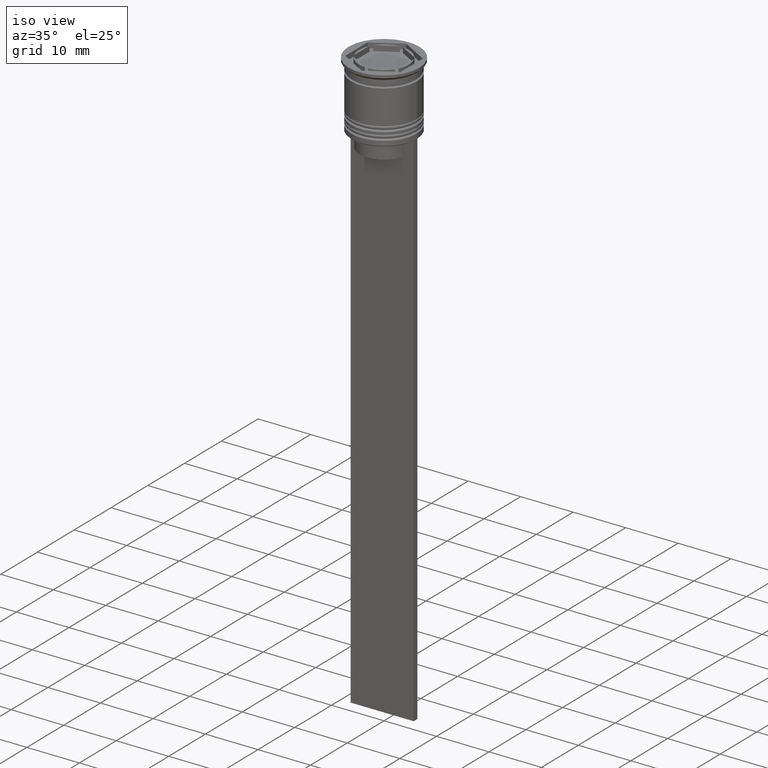
[diagram: clean part render]
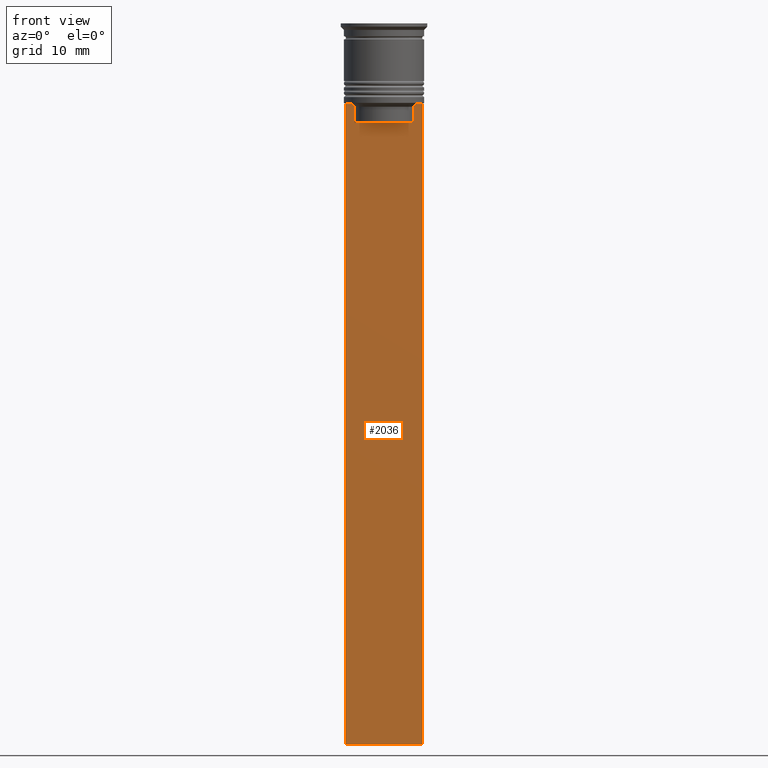
[diagram: tour spotlight — one face highlighted and labeled with its STEP entity id]
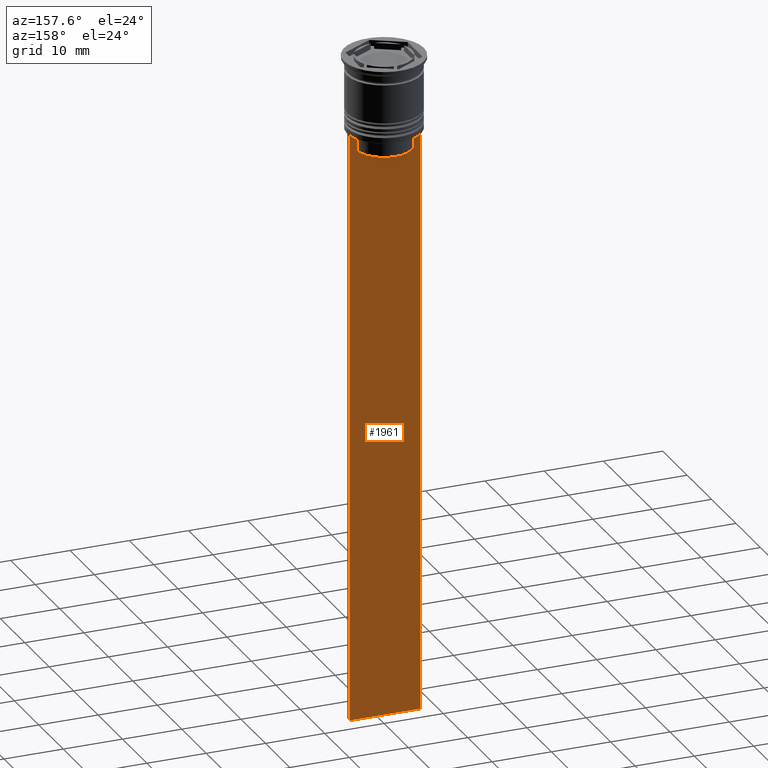
[diagram: tour spotlight — one face highlighted and labeled with its STEP entity id]
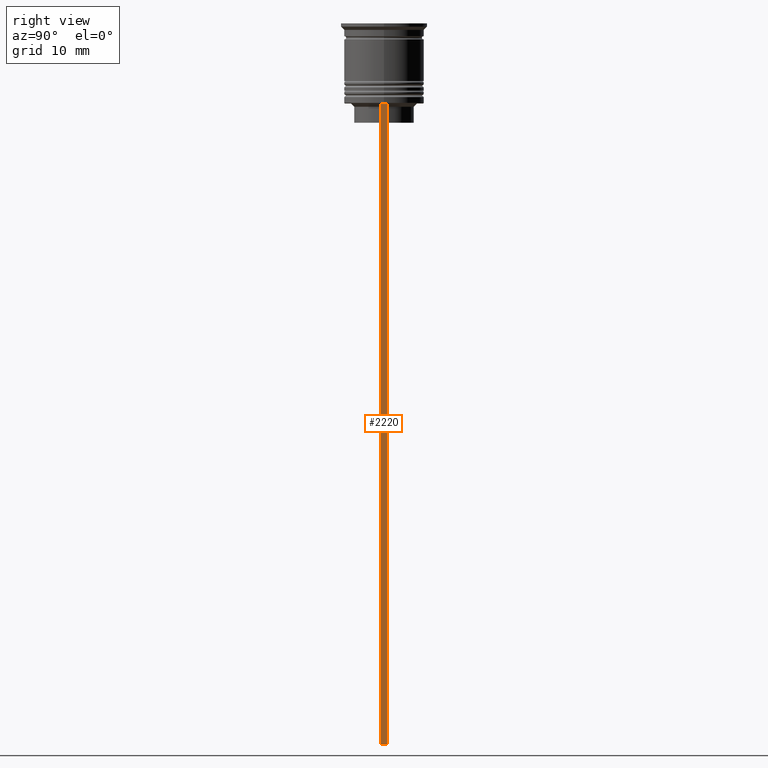
[diagram: tour spotlight — one face highlighted and labeled with its STEP entity id]
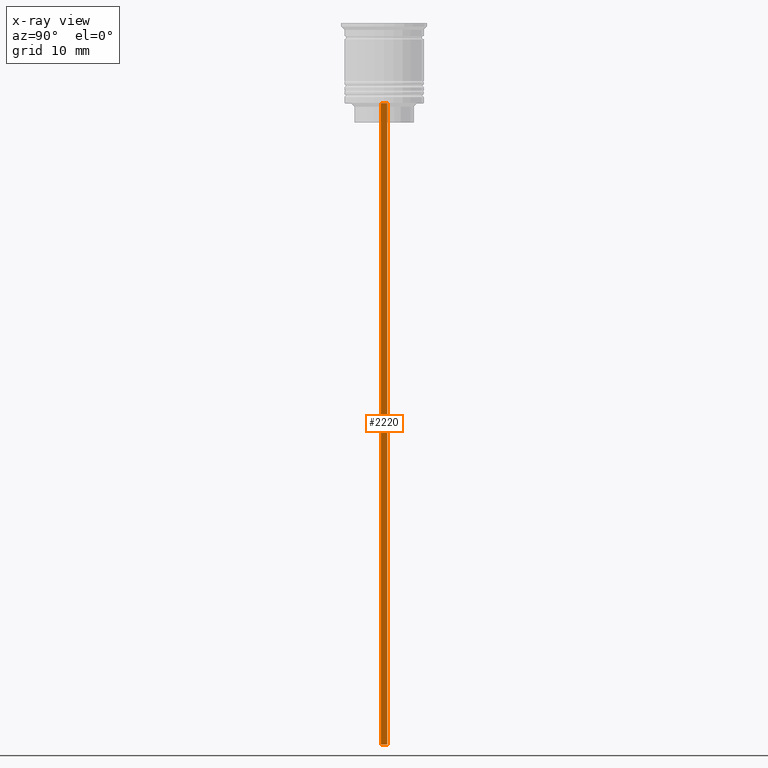
[diagram: x-ray of the same camera — body ghosted, this tour face saturated]
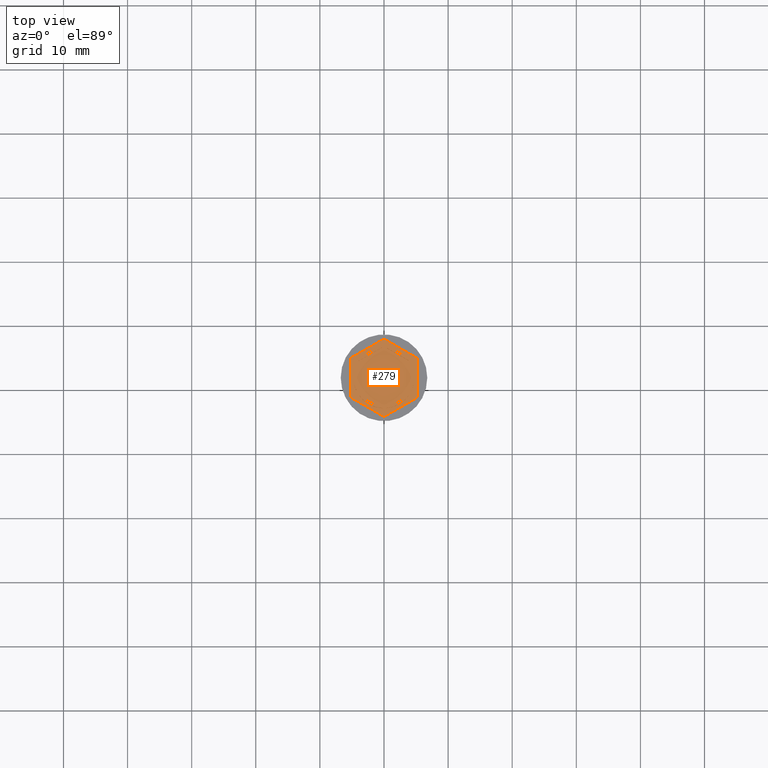
[diagram: tour spotlight — one face highlighted and labeled with its STEP entity id]
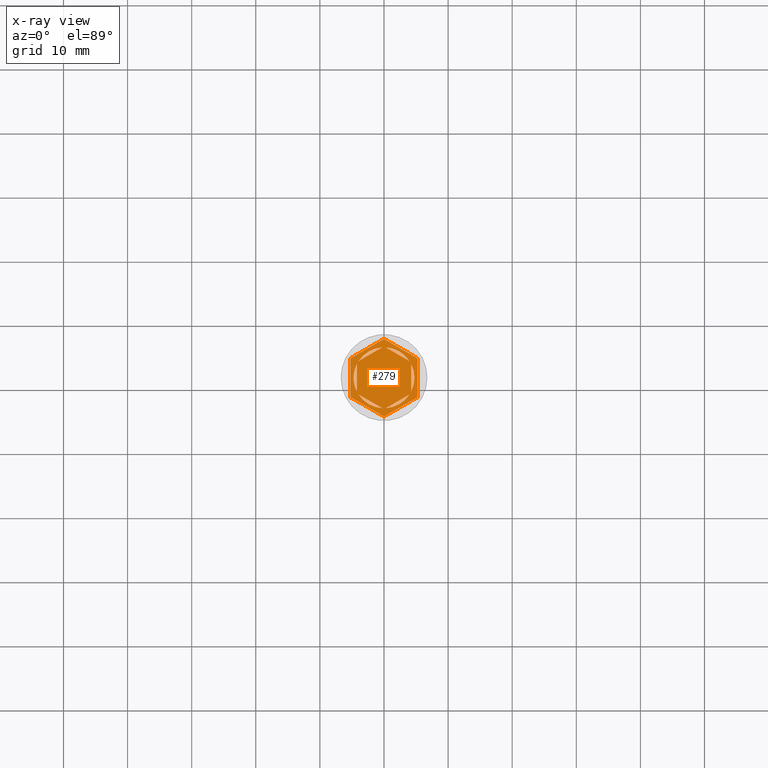
[diagram: x-ray of the same camera — body ghosted, this tour face saturated]
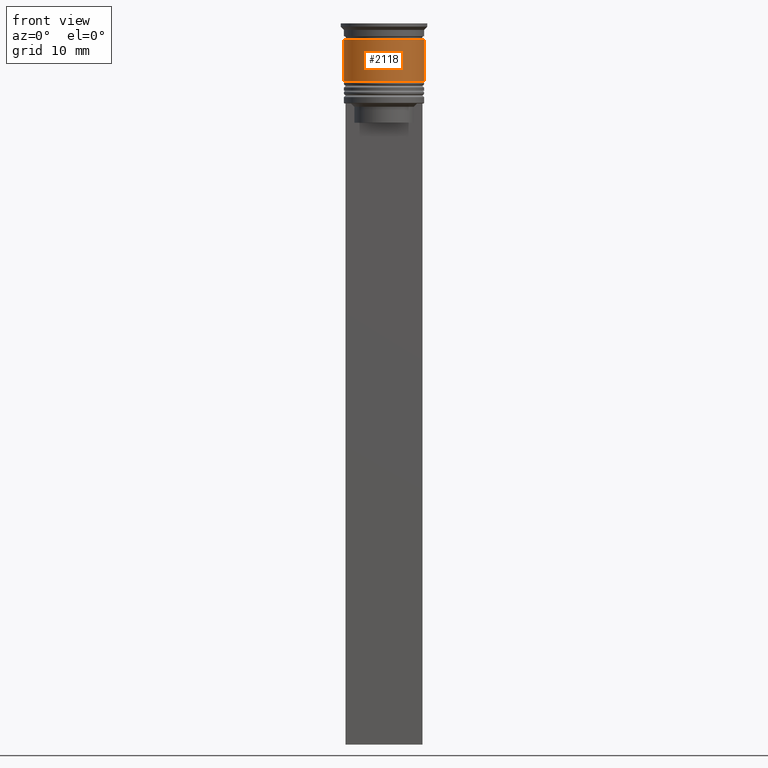
[diagram: tour spotlight — one face highlighted and labeled with its STEP entity id]
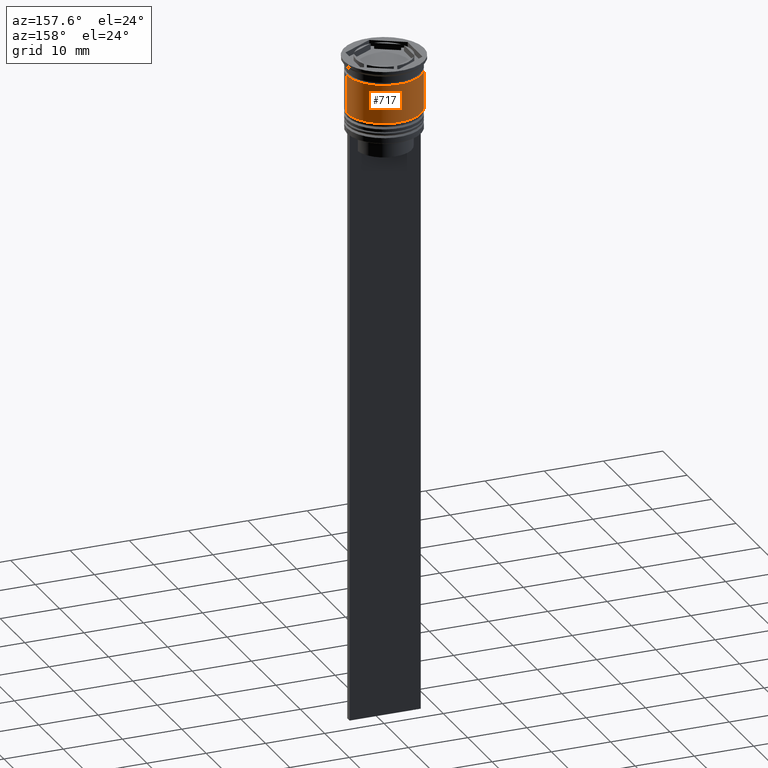
[diagram: tour spotlight — one face highlighted and labeled with its STEP entity id]
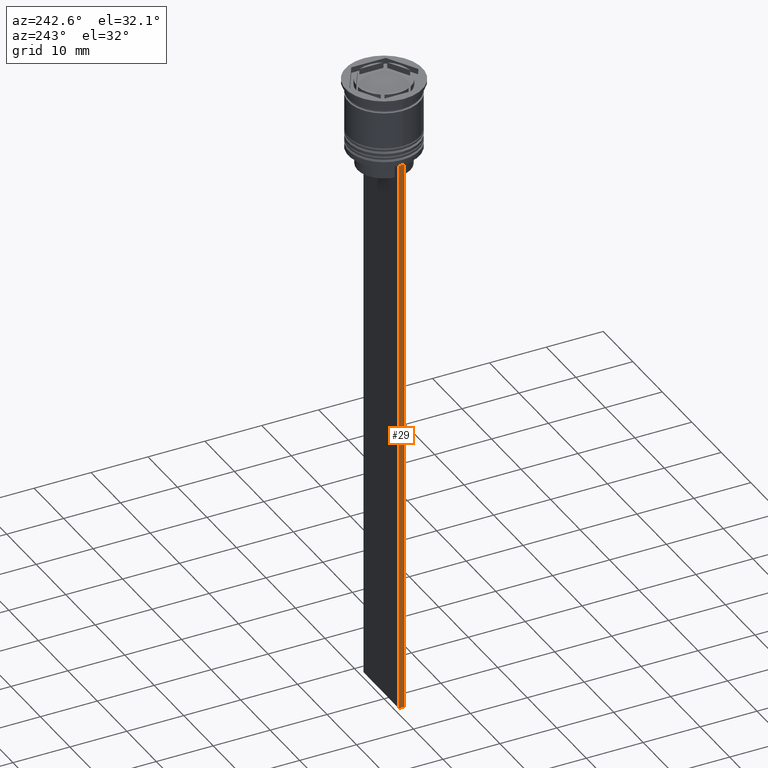
[diagram: tour spotlight — one face highlighted and labeled with its STEP entity id]
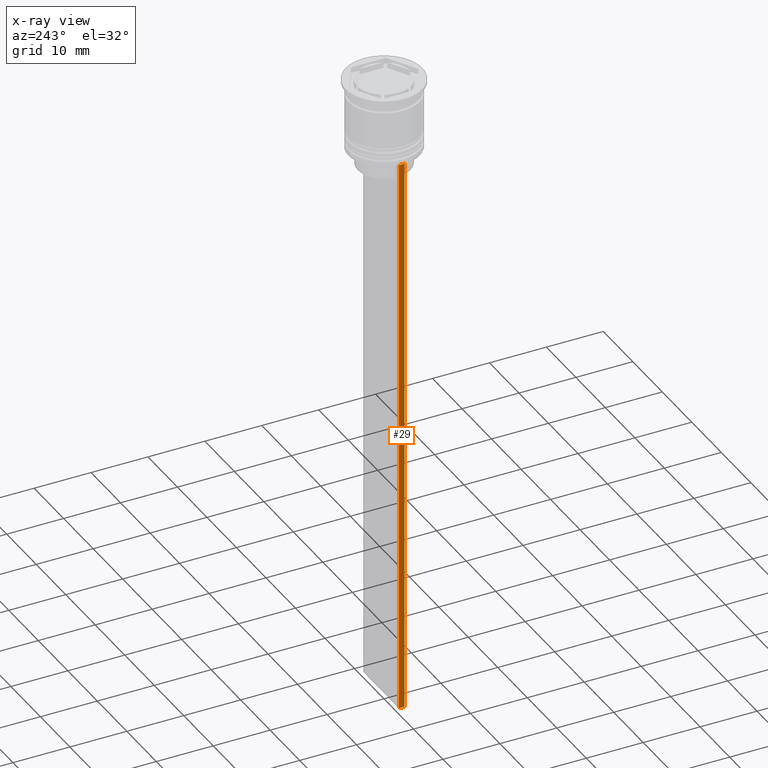
[diagram: x-ray of the same camera — body ghosted, this tour face saturated]
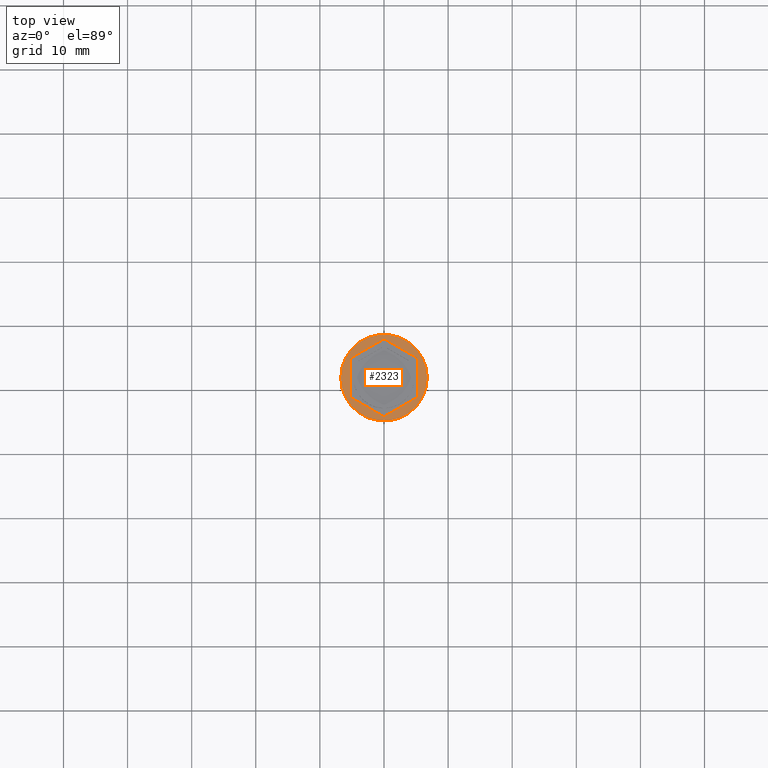
[diagram: tour spotlight — one face highlighted and labeled with its STEP entity id]
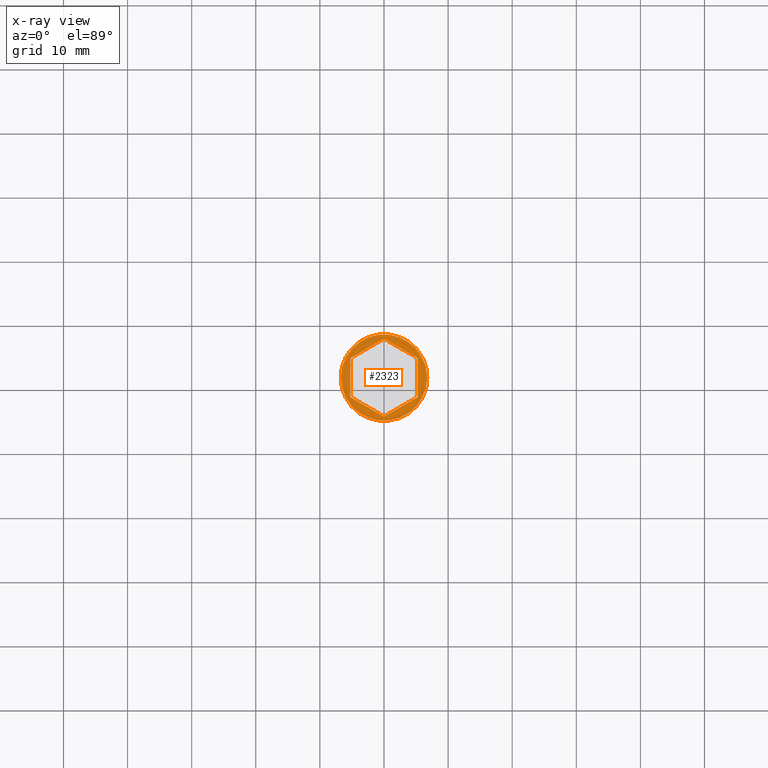
[diagram: x-ray of the same camera — body ghosted, this tour face saturated]
A machine part: a face-by-face anatomy tour. The part has 85 B-rep faces; the first image is the clean iso view, then the 8 largest visible faces are spotlighted one at a time (largest first), each with its STEP entity span.

Face 1 — front view, entity #2036. In plain terms, the highlighted planar face has unit normal (0, -1, -0).
Definition (entity closure, byte-faithful):
#16 = VERTEX_POINT ( 'NONE', #1810 ) ;
#57 = CARTESIAN_POINT ( 'NONE',  ( 4.623040125285526436, -0.5000000000000017764, -13.00000000000000178 ) ) ;
#94 = VECTOR ( 'NONE', #1087, 1000.000000000000000 ) ;
#104 = CARTESIAN_POINT ( 'NONE',  ( 6.000000000000016875, -0.5000000000000017764, -112.5000000000000000 ) ) ;
#114 = VECTOR ( 'NONE', #1331, 1000.000000000000000 ) ;
#170 = AXIS2_PLACEMENT_3D ( 'NONE', #1927, #1547, #2094 ) ;
#172 = LINE ( 'NONE', #1618, #2310 ) ;
#211 = EDGE_CURVE ( 'NONE', #16, #2301, #658, .T. ) ;
#240 = DIRECTION ( 'NONE',  ( 1.000000000000000000, 0.000000000000000000, 0.000000000000000000 ) ) ;
#291 = PLANE ( 'NONE',  #170 ) ;
#295 = EDGE_CURVE ( 'NONE', #1500, #544, #2290, .T. ) ;
#298 = B_SPLINE_CURVE_WITH_KNOTS ( 'NONE', 3,
 ( #1911, #793, #1497, #606 ),
 .UNSPECIFIED., .F., .F.,
 ( 4, 4 ),
 ( 0.02203698174624552780, 0.02275222543365896383 ),
 .UNSPECIFIED. ) ;
#348 = VECTOR ( 'NONE', #240, 1000.000000000000000 ) ;
#390 = VECTOR ( 'NONE', #1135, 1000.000000000000000 ) ;
#415 = CARTESIAN_POINT ( 'NONE',  ( 4.623040125285526436, -0.5000000000000022204, -15.50000000000000000 ) ) ;
#486 = CARTESIAN_POINT ( 'NONE',  ( -5.125670687822231564, -0.5000000000000017764, -12.50000000000000000 ) ) ;
#509 = CARTESIAN_POINT ( 'NONE',  ( -4.958169823806760412, -0.5000000000000017764, -12.66670956677067927 ) ) ;
#544 = VERTEX_POINT ( 'NONE', #57 ) ;
#546 = EDGE_CURVE ( 'NONE', #544, #16, #298, .T. ) ;
#547 = CARTESIAN_POINT ( 'NONE',  ( -4.623040125285526436, -0.5000000000000017764, 0.000000000000000000 ) ) ;
#600 = EDGE_CURVE ( 'NONE', #1481, #673, #1886, .T. ) ;
#604 = ORIENTED_EDGE ( 'NONE', *, *, #2221, .T. ) ;
#606 = CARTESIAN_POINT ( 'NONE',  ( 5.125670687822231564, -0.5000000000000017764, -12.50000000000000000 ) ) ;
#636 = B_SPLINE_CURVE_WITH_KNOTS ( 'NONE', 3,
 ( #486, #509, #2140, #1573 ),
 .UNSPECIFIED., .F., .F.,
 ( 4, 4 ),
 ( 0.008759809102772709091, 0.009468778395565353653 ),
 .UNSPECIFIED. ) ;
#658 = LINE ( 'NONE', #1137, #348 ) ;
#673 = VERTEX_POINT ( 'NONE', #1210 ) ;
#684 = VERTEX_POINT ( 'NONE', #1024 ) ;
#720 = ORIENTED_EDGE ( 'NONE', *, *, #295, .F. ) ;
#724 = DIRECTION ( 'NONE',  ( 1.000000000000000000, 0.000000000000000000, 0.000000000000000000 ) ) ;
#770 = CARTESIAN_POINT ( 'NONE',  ( 6.000000000000016875, -0.5000000000000017764, -112.5000000000000000 ) ) ;
#786 = EDGE_CURVE ( 'NONE', #1676, #1383, #1256, .T. ) ;
#792 = EDGE_LOOP ( 'NONE', ( #1630, #1095, #604, #802, #1465, #1238, #1574, #720, #1426, #1038 ) ) ;
#793 = CARTESIAN_POINT ( 'NONE',  ( 4.790630799407577634, -0.5000000000000017764, -12.83338098686238915 ) ) ;
#802 = ORIENTED_EDGE ( 'NONE', *, *, #600, .F. ) ;
#810 = LINE ( 'NONE', #1690, #114 ) ;
#846 = VECTOR ( 'NONE', #724, 1000.000000000000000 ) ;
#974 = CARTESIAN_POINT ( 'NONE',  ( 6.000000000000016875, -0.5000000000000017764, -12.50000000000000000 ) ) ;
#1024 = CARTESIAN_POINT ( 'NONE',  ( -4.623040125285526436, -0.5000000000000017764, -13.00000000000000178 ) ) ;
#1029 = CARTESIAN_POINT ( 'NONE',  ( 4.623040125285526436, -0.5000000000000017764, 0.000000000000000000 ) ) ;
#1038 = ORIENTED_EDGE ( 'NONE', *, *, #1776, .F. ) ;
#1087 = DIRECTION ( 'NONE',  ( 0.000000000000000000, 0.000000000000000000, -1.000000000000000000 ) ) ;
#1095 = ORIENTED_EDGE ( 'NONE', *, *, #786, .F. ) ;
#1135 = DIRECTION ( 'NONE',  ( -1.000000000000000000, 0.000000000000000000, 0.000000000000000000 ) ) ;
#1137 = CARTESIAN_POINT ( 'NONE',  ( 6.000000000000016875, -0.5000000000000017764, -12.50000000000000000 ) ) ;
#1182 = VECTOR ( 'NONE', #2136, 1000.000000000000000 ) ;
#1210 = CARTESIAN_POINT ( 'NONE',  ( -5.999999999999983125, -0.5000000000000017764, -112.5000000000000000 ) ) ;
#1238 = ORIENTED_EDGE ( 'NONE', *, *, #211, .F. ) ;
#1256 = LINE ( 'NONE', #2189, #846 ) ;
#1331 = DIRECTION ( 'NONE',  ( 0.000000000000000000, 0.000000000000000000, -1.000000000000000000 ) ) ;
#1338 = CARTESIAN_POINT ( 'NONE',  ( -5.125670687822231564, -0.5000000000000017764, -12.50000000000000000 ) ) ;
#1383 = VERTEX_POINT ( 'NONE', #1338 ) ;
#1401 = LINE ( 'NONE', #2315, #2031 ) ;
#1415 = DIRECTION ( 'NONE',  ( 0.000000000000000000, 0.000000000000000000, -1.000000000000000000 ) ) ;
#1426 = ORIENTED_EDGE ( 'NONE', *, *, #2162, .F. ) ;
#1465 = ORIENTED_EDGE ( 'NONE', *, *, #1995, .F. ) ;
#1468 = CARTESIAN_POINT ( 'NONE',  ( -5.999999999999983125, -0.5000000000000017764, -12.50000000000000000 ) ) ;
#1481 = VERTEX_POINT ( 'NONE', #104 ) ;
#1491 = VERTEX_POINT ( 'NONE', #1515 ) ;
#1497 = CARTESIAN_POINT ( 'NONE',  ( 4.958169719475987947, -0.5000000000000017764, -12.66670967060858111 ) ) ;
#1500 = VERTEX_POINT ( 'NONE', #415 ) ;
#1515 = CARTESIAN_POINT ( 'NONE',  ( -4.623040125285526436, -0.5000000000000022204, -15.50000000000000000 ) ) ;
#1547 = DIRECTION ( 'NONE',  ( 0.000000000000000000, -1.000000000000000000, -0.000000000000000000 ) ) ;
#1573 = CARTESIAN_POINT ( 'NONE',  ( -4.623040125285526436, -0.5000000000000017764, -13.00000000000000178 ) ) ;
#1574 = ORIENTED_EDGE ( 'NONE', *, *, #546, .F. ) ;
#1618 = CARTESIAN_POINT ( 'NONE',  ( 0.000000000000000000, -0.5000000000000022204, -15.50000000000000000 ) ) ;
#1630 = ORIENTED_EDGE ( 'NONE', *, *, #2010, .F. ) ;
#1676 = VERTEX_POINT ( 'NONE', #1468 ) ;
#1690 = CARTESIAN_POINT ( 'NONE',  ( -5.999999999999983125, -0.5000000000000017764, -0.4584054212077061097 ) ) ;
#1776 = EDGE_CURVE ( 'NONE', #684, #1491, #1839, .T. ) ;
#1810 = CARTESIAN_POINT ( 'NONE',  ( 5.125670687822231564, -0.5000000000000017764, -12.50000000000000000 ) ) ;
#1839 = LINE ( 'NONE', #547, #94 ) ;
#1886 = LINE ( 'NONE', #770, #390 ) ;
#1911 = CARTESIAN_POINT ( 'NONE',  ( 4.623040125285526436, -0.5000000000000017764, -13.00000000000000178 ) ) ;
#1927 = CARTESIAN_POINT ( 'NONE',  ( 6.000000000000016875, -0.5000000000000017764, -0.4584054212077061097 ) ) ;
#1990 = DIRECTION ( 'NONE',  ( 1.000000000000000000, 0.000000000000000000, 0.000000000000000000 ) ) ;
#1995 = EDGE_CURVE ( 'NONE', #2301, #1481, #1401, .T. ) ;
#2010 = EDGE_CURVE ( 'NONE', #1383, #684, #636, .T. ) ;
#2031 = VECTOR ( 'NONE', #1415, 1000.000000000000000 ) ;
#2036 = ADVANCED_FACE ( 'NONE', ( #2302 ), #291, .T. ) ;
#2094 = DIRECTION ( 'NONE',  ( 0.000000000000000000, 0.000000000000000000, -1.000000000000000000 ) ) ;
#2136 = DIRECTION ( 'NONE',  ( -0.000000000000000000, -0.000000000000000000, 1.000000000000000000 ) ) ;
#2140 = CARTESIAN_POINT ( 'NONE',  ( -4.790630915080664742, -0.5000000000000017764, -12.83338087185995491 ) ) ;
#2162 = EDGE_CURVE ( 'NONE', #1491, #1500, #172, .T. ) ;
#2189 = CARTESIAN_POINT ( 'NONE',  ( 6.000000000000016875, -0.5000000000000017764, -12.50000000000000000 ) ) ;
#2221 = EDGE_CURVE ( 'NONE', #1676, #673, #810, .T. ) ;
#2290 = LINE ( 'NONE', #1029, #1182 ) ;
#2301 = VERTEX_POINT ( 'NONE', #974 ) ;
#2302 = FACE_OUTER_BOUND ( 'NONE', #792, .T. ) ;
#2310 = VECTOR ( 'NONE', #1990, 1000.000000000000000 ) ;
#2315 = CARTESIAN_POINT ( 'NONE',  ( 6.000000000000016875, -0.5000000000000017764, -0.4584054212077061097 ) ) ;

Face 2 — auxiliary view, entity #1961. In plain terms, the highlighted planar face has unit normal (0, -1, -0).
Definition (entity closure, byte-faithful):
#3 = LINE ( 'NONE', #542, #343 ) ;
#68 = DIRECTION ( 'NONE',  ( -0.000000000000000000, -0.000000000000000000, 1.000000000000000000 ) ) ;
#75 = EDGE_CURVE ( 'NONE', #186, #1871, #1296, .T. ) ;
#77 = ORIENTED_EDGE ( 'NONE', *, *, #2119, .T. ) ;
#102 = CARTESIAN_POINT ( 'NONE',  ( -4.958169823806762189, 0.4999999999999982792, -12.66670956677067750 ) ) ;
#108 = CARTESIAN_POINT ( 'NONE',  ( -4.623040125285526436, 0.4999999999999987232, -15.50000000000000000 ) ) ;
#124 = VECTOR ( 'NONE', #68, 1000.000000000000000 ) ;
#126 = VECTOR ( 'NONE', #1511, 1000.000000000000000 ) ;
#147 = FACE_OUTER_BOUND ( 'NONE', #778, .T. ) ;
#166 = VECTOR ( 'NONE', #1005, 1000.000000000000000 ) ;
#186 = VERTEX_POINT ( 'NONE', #108 ) ;
#262 = DIRECTION ( 'NONE',  ( 0.000000000000000000, 0.000000000000000000, -1.000000000000000000 ) ) ;
#280 = CARTESIAN_POINT ( 'NONE',  ( 6.000000000000016875, 0.4999999999999982792, -0.4584054212077061097 ) ) ;
#336 = CARTESIAN_POINT ( 'NONE',  ( 6.000000000000016875, 0.4999999999999982792, -12.50000000000000000 ) ) ;
#343 = VECTOR ( 'NONE', #1784, 1000.000000000000000 ) ;
#389 = ORIENTED_EDGE ( 'NONE', *, *, #1004, .T. ) ;
#393 = VECTOR ( 'NONE', #262, 1000.000000000000000 ) ;
#416 = LINE ( 'NONE', #1329, #1906 ) ;
#450 = CARTESIAN_POINT ( 'NONE',  ( 4.623040125285526436, 0.4999999999999987232, -15.50000000000000000 ) ) ;
#452 = CARTESIAN_POINT ( 'NONE',  ( 6.000000000000016875, 0.4999999999999982792, -0.4584054212077061097 ) ) ;
#481 = LINE ( 'NONE', #755, #393 ) ;
#484 = ORIENTED_EDGE ( 'NONE', *, *, #1947, .T. ) ;
#522 = CARTESIAN_POINT ( 'NONE',  ( -5.125670687822231564, 0.4999999999999982792, -12.50000000000000000 ) ) ;
#542 = CARTESIAN_POINT ( 'NONE',  ( 6.000000000000016875, 0.4999999999999982792, -12.50000000000000000 ) ) ;
#545 = EDGE_CURVE ( 'NONE', #1871, #823, #1698, .T. ) ;
#575 = EDGE_CURVE ( 'NONE', #2125, #1783, #416, .T. ) ;
#639 = ORIENTED_EDGE ( 'NONE', *, *, #861, .T. ) ;
#644 = CARTESIAN_POINT ( 'NONE',  ( 5.125670687822231564, 0.4999999999999982792, -12.50000000000000000 ) ) ;
#663 = CARTESIAN_POINT ( 'NONE',  ( -4.790630915080666519, 0.4999999999999982792, -12.83338087185995313 ) ) ;
#677 = CARTESIAN_POINT ( 'NONE',  ( -4.623040125285526436, 0.4999999999999982792, -13.00000000000000178 ) ) ;
#686 = VECTOR ( 'NONE', #2152, 1000.000000000000000 ) ;
#694 = PLANE ( 'NONE',  #704 ) ;
#704 = AXIS2_PLACEMENT_3D ( 'NONE', #280, #1033, #2106 ) ;
#719 = CARTESIAN_POINT ( 'NONE',  ( 6.000000000000016875, 0.4999999999999982792, -112.5000000000000000 ) ) ;
#755 = CARTESIAN_POINT ( 'NONE',  ( -4.623040125285526436, 0.4999999999999982792, 0.000000000000000000 ) ) ;
#778 = EDGE_LOOP ( 'NONE', ( #1436, #484, #389, #2329, #1280, #639, #77, #989, #2246, #2303 ) ) ;
#788 = LINE ( 'NONE', #1692, #126 ) ;
#823 = VERTEX_POINT ( 'NONE', #2046 ) ;
#834 = CARTESIAN_POINT ( 'NONE',  ( -5.999999999999983125, 0.4999999999999985012, -12.50000000000000000 ) ) ;
#861 = EDGE_CURVE ( 'NONE', #823, #1088, #1656, .T. ) ;
#902 = EDGE_CURVE ( 'NONE', #1965, #1783, #788, .T. ) ;
#989 = ORIENTED_EDGE ( 'NONE', *, *, #1455, .T. ) ;
#1004 = EDGE_CURVE ( 'NONE', #1539, #186, #481, .T. ) ;
#1005 = DIRECTION ( 'NONE',  ( 0.000000000000000000, 0.000000000000000000, -1.000000000000000000 ) ) ;
#1006 = DIRECTION ( 'NONE',  ( -1.000000000000000000, 0.000000000000000000, 0.000000000000000000 ) ) ;
#1033 = DIRECTION ( 'NONE',  ( 0.000000000000000000, -1.000000000000000000, -0.000000000000000000 ) ) ;
#1088 = VERTEX_POINT ( 'NONE', #644 ) ;
#1277 = LINE ( 'NONE', #2161, #686 ) ;
#1280 = ORIENTED_EDGE ( 'NONE', *, *, #545, .T. ) ;
#1296 = LINE ( 'NONE', #1375, #1716 ) ;
#1329 = CARTESIAN_POINT ( 'NONE',  ( 6.000000000000016875, 0.4999999999999982792, -112.5000000000000000 ) ) ;
#1375 = CARTESIAN_POINT ( 'NONE',  ( 0.000000000000000000, 0.4999999999999987232, -15.50000000000000000 ) ) ;
#1431 = CARTESIAN_POINT ( 'NONE',  ( 4.623040125285526436, 0.4999999999999982792, -13.00000000000000178 ) ) ;
#1436 = ORIENTED_EDGE ( 'NONE', *, *, #2134, .T. ) ;
#1455 = EDGE_CURVE ( 'NONE', #2116, #2125, #1909, .T. ) ;
#1458 = CARTESIAN_POINT ( 'NONE',  ( -5.999999999999983125, 0.4999999999999982792, -112.5000000000000000 ) ) ;
#1487 = VERTEX_POINT ( 'NONE', #2216 ) ;
#1511 = DIRECTION ( 'NONE',  ( 0.000000000000000000, 0.000000000000000000, -1.000000000000000000 ) ) ;
#1539 = VERTEX_POINT ( 'NONE', #677 ) ;
#1656 = B_SPLINE_CURVE_WITH_KNOTS ( 'NONE', 3,
 ( #1431, #2342, #1790, #1997 ),
 .UNSPECIFIED., .F., .F.,
 ( 4, 4 ),
 ( 0.02203698174624552433, 0.02275222543365896036 ),
 .UNSPECIFIED. ) ;
#1675 = B_SPLINE_CURVE_WITH_KNOTS ( 'NONE', 3,
 ( #522, #102, #663, #1749 ),
 .UNSPECIFIED., .F., .F.,
 ( 4, 4 ),
 ( 0.008759809102772707357, 0.009468778395565351919 ),
 .UNSPECIFIED. ) ;
#1692 = CARTESIAN_POINT ( 'NONE',  ( -5.999999999999983125, 0.4999999999999982792, -0.4584054212077061097 ) ) ;
#1698 = LINE ( 'NONE', #1897, #124 ) ;
#1716 = VECTOR ( 'NONE', #1863, 1000.000000000000000 ) ;
#1749 = CARTESIAN_POINT ( 'NONE',  ( -4.623040125285526436, 0.4999999999999982792, -13.00000000000000178 ) ) ;
#1783 = VERTEX_POINT ( 'NONE', #1458 ) ;
#1784 = DIRECTION ( 'NONE',  ( 1.000000000000000000, 0.000000000000000000, 0.000000000000000000 ) ) ;
#1790 = CARTESIAN_POINT ( 'NONE',  ( 4.958169719475987058, 0.4999999999999982792, -12.66670967060858111 ) ) ;
#1863 = DIRECTION ( 'NONE',  ( 1.000000000000000000, 0.000000000000000000, 0.000000000000000000 ) ) ;
#1871 = VERTEX_POINT ( 'NONE', #450 ) ;
#1897 = CARTESIAN_POINT ( 'NONE',  ( 4.623040125285526436, 0.4999999999999982792, 0.000000000000000000 ) ) ;
#1906 = VECTOR ( 'NONE', #1006, 1000.000000000000000 ) ;
#1909 = LINE ( 'NONE', #452, #166 ) ;
#1947 = EDGE_CURVE ( 'NONE', #1487, #1539, #1675, .T. ) ;
#1961 = ADVANCED_FACE ( 'NONE', ( #147 ), #694, .F. ) ;
#1965 = VERTEX_POINT ( 'NONE', #834 ) ;
#1997 = CARTESIAN_POINT ( 'NONE',  ( 5.125670687822231564, 0.4999999999999982792, -12.50000000000000000 ) ) ;
#2046 = CARTESIAN_POINT ( 'NONE',  ( 4.623040125285526436, 0.4999999999999982792, -13.00000000000000178 ) ) ;
#2106 = DIRECTION ( 'NONE',  ( 0.000000000000000000, 0.000000000000000000, -1.000000000000000000 ) ) ;
#2116 = VERTEX_POINT ( 'NONE', #336 ) ;
#2119 = EDGE_CURVE ( 'NONE', #1088, #2116, #3, .T. ) ;
#2125 = VERTEX_POINT ( 'NONE', #719 ) ;
#2134 = EDGE_CURVE ( 'NONE', #1965, #1487, #1277, .T. ) ;
#2152 = DIRECTION ( 'NONE',  ( 1.000000000000000000, 0.000000000000000000, 0.000000000000000000 ) ) ;
#2161 = CARTESIAN_POINT ( 'NONE',  ( 6.000000000000016875, 0.4999999999999982792, -12.50000000000000000 ) ) ;
#2216 = CARTESIAN_POINT ( 'NONE',  ( -5.125670687822231564, 0.4999999999999982792, -12.50000000000000000 ) ) ;
#2246 = ORIENTED_EDGE ( 'NONE', *, *, #575, .T. ) ;
#2303 = ORIENTED_EDGE ( 'NONE', *, *, #902, .F. ) ;
#2329 = ORIENTED_EDGE ( 'NONE', *, *, #75, .T. ) ;
#2342 = CARTESIAN_POINT ( 'NONE',  ( 4.790630799407576745, 0.4999999999999982792, -12.83338098686239093 ) ) ;

Face 3 — right view, entity #2220. An x-ray twin of the same camera follows (body ghosted, this face saturated) — the face is partly hidden behind the body. In plain terms, the highlighted planar face has unit normal (-1, 0, 0).
Definition (entity closure, byte-faithful):
#36 = AXIS2_PLACEMENT_3D ( 'NONE', #2244, #984, #87 ) ;
#87 = DIRECTION ( 'NONE',  ( 0.000000000000000000, 0.000000000000000000, 1.000000000000000000 ) ) ;
#104 = CARTESIAN_POINT ( 'NONE',  ( 6.000000000000016875, -0.5000000000000017764, -112.5000000000000000 ) ) ;
#117 = EDGE_CURVE ( 'NONE', #1481, #2125, #274, .T. ) ;
#166 = VECTOR ( 'NONE', #1005, 1000.000000000000000 ) ;
#202 = CARTESIAN_POINT ( 'NONE',  ( 6.000000000000016875, -0.5000000000000017764, -12.50000000000000000 ) ) ;
#252 = DIRECTION ( 'NONE',  ( 0.000000000000000000, 1.000000000000000000, 0.000000000000000000 ) ) ;
#274 = LINE ( 'NONE', #961, #912 ) ;
#336 = CARTESIAN_POINT ( 'NONE',  ( 6.000000000000016875, 0.4999999999999982792, -12.50000000000000000 ) ) ;
#399 = PLANE ( 'NONE',  #36 ) ;
#452 = CARTESIAN_POINT ( 'NONE',  ( 6.000000000000016875, 0.4999999999999982792, -0.4584054212077061097 ) ) ;
#537 = DIRECTION ( 'NONE',  ( 0.000000000000000000, -1.000000000000000000, 0.000000000000000000 ) ) ;
#552 = LINE ( 'NONE', #202, #1341 ) ;
#593 = ORIENTED_EDGE ( 'NONE', *, *, #1364, .T. ) ;
#609 = FACE_OUTER_BOUND ( 'NONE', #1428, .T. ) ;
#719 = CARTESIAN_POINT ( 'NONE',  ( 6.000000000000016875, 0.4999999999999982792, -112.5000000000000000 ) ) ;
#912 = VECTOR ( 'NONE', #252, 1000.000000000000000 ) ;
#961 = CARTESIAN_POINT ( 'NONE',  ( 6.000000000000016875, -0.5000000000000017764, -112.5000000000000000 ) ) ;
#974 = CARTESIAN_POINT ( 'NONE',  ( 6.000000000000016875, -0.5000000000000017764, -12.50000000000000000 ) ) ;
#984 = DIRECTION ( 'NONE',  ( -1.000000000000000000, 0.000000000000000000, 0.000000000000000000 ) ) ;
#1005 = DIRECTION ( 'NONE',  ( 0.000000000000000000, 0.000000000000000000, -1.000000000000000000 ) ) ;
#1107 = ORIENTED_EDGE ( 'NONE', *, *, #117, .T. ) ;
#1276 = ORIENTED_EDGE ( 'NONE', *, *, #1455, .F. ) ;
#1341 = VECTOR ( 'NONE', #537, 1000.000000000000000 ) ;
#1364 = EDGE_CURVE ( 'NONE', #2116, #2301, #552, .T. ) ;
#1401 = LINE ( 'NONE', #2315, #2031 ) ;
#1415 = DIRECTION ( 'NONE',  ( 0.000000000000000000, 0.000000000000000000, -1.000000000000000000 ) ) ;
#1428 = EDGE_LOOP ( 'NONE', ( #1276, #593, #1715, #1107 ) ) ;
#1455 = EDGE_CURVE ( 'NONE', #2116, #2125, #1909, .T. ) ;
#1481 = VERTEX_POINT ( 'NONE', #104 ) ;
#1715 = ORIENTED_EDGE ( 'NONE', *, *, #1995, .T. ) ;
#1909 = LINE ( 'NONE', #452, #166 ) ;
#1995 = EDGE_CURVE ( 'NONE', #2301, #1481, #1401, .T. ) ;
#2031 = VECTOR ( 'NONE', #1415, 1000.000000000000000 ) ;
#2116 = VERTEX_POINT ( 'NONE', #336 ) ;
#2125 = VERTEX_POINT ( 'NONE', #719 ) ;
#2220 = ADVANCED_FACE ( 'NONE', ( #609 ), #399, .F. ) ;
#2244 = CARTESIAN_POINT ( 'NONE',  ( 6.000000000000016875, -0.5000000000000017764, -0.4584054212077061097 ) ) ;
#2301 = VERTEX_POINT ( 'NONE', #974 ) ;
#2315 = CARTESIAN_POINT ( 'NONE',  ( 6.000000000000016875, -0.5000000000000017764, -0.4584054212077061097 ) ) ;

Face 4 — top view, entity #279. An x-ray twin of the same camera follows (body ghosted, this face saturated) — the face is partly hidden behind the body. In plain terms, the highlighted planar face has unit normal (0, 0, 1).
Definition (entity closure, byte-faithful):
#6 = CARTESIAN_POINT ( 'NONE',  ( 3.962117307087384521, 2.619947794304043232, -1.000000000000000888 ) ) ;
#25 = LINE ( 'NONE', #1724, #1186 ) ;
#53 = VECTOR ( 'NONE', #1142, 1000.000000000000114 ) ;
#60 = CARTESIAN_POINT ( 'NONE',  ( -3.962117307087385409, -2.619947794304041899, -1.000000000000000888 ) ) ;
#63 = DIRECTION ( 'NONE',  ( 0.000000000000000000, 0.000000000000000000, 1.000000000000000000 ) ) ;
#105 = CARTESIAN_POINT ( 'NONE',  ( -3.962117307087385409, 2.619947794304041899, -1.000000000000000888 ) ) ;
#145 = DIRECTION ( 'NONE',  ( 0.000000000000000000, 0.000000000000000000, 1.000000000000000000 ) ) ;
#152 = ORIENTED_EDGE ( 'NONE', *, *, #1964, .F. ) ;
#155 = FACE_BOUND ( 'NONE', #1650, .T. ) ;
#179 = VERTEX_POINT ( 'NONE', #60 ) ;
#180 = CARTESIAN_POINT ( 'NONE',  ( 0.000000000000000000, 0.000000000000000000, -1.000000000000000000 ) ) ;
#187 = LINE ( 'NONE', #1471, #919 ) ;
#198 = AXIS2_PLACEMENT_3D ( 'NONE', #1772, #145, #1759 ) ;
#222 = VERTEX_POINT ( 'NONE', #1165 ) ;
#223 = CARTESIAN_POINT ( 'NONE',  ( 5.250000000000000888, -3.031088913245536087, -1.000000000000000000 ) ) ;
#237 = EDGE_CURVE ( 'NONE', #504, #917, #541, .T. ) ;
#238 = CARTESIAN_POINT ( 'NONE',  ( 5.250000000000000888, -3.031088913245536087, -1.000000000000000000 ) ) ;
#245 = DIRECTION ( 'NONE',  ( -0.8660254037844385966, 0.4999999999999998890, 0.000000000000000000 ) ) ;
#256 = CARTESIAN_POINT ( 'NONE',  ( 3.962117307087384521, -2.619947794304042787, -1.000000000000000888 ) ) ;
#279 = ADVANCED_FACE ( 'NONE', ( #323, #1782, #155, #705, #715, #482, #1212 ), #856, .T. ) ;
#282 = ORIENTED_EDGE ( 'NONE', *, *, #445, .F. ) ;
#296 = DIRECTION ( 'NONE',  ( 0.000000000000000000, 0.000000000000000000, 1.000000000000000000 ) ) ;
#299 = CARTESIAN_POINT ( 'NONE',  ( -5.250000000000000888, -3.031088913245536087, -1.000000000000000000 ) ) ;
#306 = VECTOR ( 'NONE', #1747, 1000.000000000000000 ) ;
#320 = DIRECTION ( 'NONE',  ( 1.000000000000000000, 0.000000000000000000, 0.000000000000000000 ) ) ;
#323 = FACE_BOUND ( 'NONE', #614, .T. ) ;
#333 = CARTESIAN_POINT ( 'NONE',  ( -5.250000000000000888, 3.031088913245535643, -1.000000000000000000 ) ) ;
#366 = VERTEX_POINT ( 'NONE', #299 ) ;
#375 = DIRECTION ( 'NONE',  ( 0.000000000000000000, 0.000000000000000000, 1.000000000000000000 ) ) ;
#388 = CARTESIAN_POINT ( 'NONE',  ( -4.250000000000000000, 2.453738644055909468, -1.000000000000000888 ) ) ;
#403 = VERTEX_POINT ( 'NONE', #1464 ) ;
#413 = DIRECTION ( 'NONE',  ( 0.000000000000000000, 1.000000000000000000, 0.000000000000000000 ) ) ;
#420 = LINE ( 'NONE', #1138, #306 ) ;
#423 = CARTESIAN_POINT ( 'NONE',  ( 8.729740977282959667E-16, -6.062177826491071286, -1.000000000000000000 ) ) ;
#429 = CARTESIAN_POINT ( 'NONE',  ( 0.2878826929126150347, -4.741268137863686505, -1.000000000000000888 ) ) ;
#444 = DIRECTION ( 'NONE',  ( 0.8660254037844387076, -0.4999999999999998335, 0.000000000000000000 ) ) ;
#445 = EDGE_CURVE ( 'NONE', #1777, #2037, #1490, .T. ) ;
#455 = EDGE_CURVE ( 'NONE', #222, #2166, #565, .T. ) ;
#460 = CARTESIAN_POINT ( 'NONE',  ( 0.000000000000000000, 0.000000000000000000, -1.000000000000000000 ) ) ;
#482 = FACE_BOUND ( 'NONE', #1936, .T. ) ;
#491 = CARTESIAN_POINT ( 'NONE',  ( 4.250000000000000000, 2.453738644055910800, -1.000000000000000888 ) ) ;
#504 = VERTEX_POINT ( 'NONE', #429 ) ;
#541 = CIRCLE ( 'NONE', #838, 4.750000000000000888 ) ;
#565 = LINE ( 'NONE', #1624, #1372 ) ;
#569 = VERTEX_POINT ( 'NONE', #238 ) ;
#570 = CARTESIAN_POINT ( 'NONE',  ( 0.000000000000000000, 6.062177826491072175, -1.000000000000000000 ) ) ;
#602 = CARTESIAN_POINT ( 'NONE',  ( 8.729740977282959667E-16, -6.062177826491071286, -1.000000000000000000 ) ) ;
#614 = EDGE_LOOP ( 'NONE', ( #282, #858 ) ) ;
#640 = DIRECTION ( 'NONE',  ( 1.000000000000000000, 0.000000000000000000, 0.000000000000000000 ) ) ;
#660 = EDGE_CURVE ( 'NONE', #2037, #1777, #1921, .T. ) ;
#678 = LINE ( 'NONE', #1219, #1335 ) ;
#688 = EDGE_LOOP ( 'NONE', ( #1314, #1697 ) ) ;
#700 = ORIENTED_EDGE ( 'NONE', *, *, #237, .F. ) ;
#703 = EDGE_CURVE ( 'NONE', #1748, #179, #678, .T. ) ;
#705 = FACE_BOUND ( 'NONE', #882, .T. ) ;
#715 = FACE_BOUND ( 'NONE', #1894, .T. ) ;
#716 = EDGE_CURVE ( 'NONE', #1467, #1730, #1984, .T. ) ;
#722 = VERTEX_POINT ( 'NONE', #105 ) ;
#762 = DIRECTION ( 'NONE',  ( -1.767428939690775055E-16, -1.000000000000000000, 0.000000000000000000 ) ) ;
#785 = EDGE_CURVE ( 'NONE', #1952, #2261, #187, .T. ) ;
#800 = EDGE_CURVE ( 'NONE', #179, #1748, #2058, .T. ) ;
#838 = AXIS2_PLACEMENT_3D ( 'NONE', #1174, #1899, #1041 ) ;
#856 = PLANE ( 'NONE',  #198 ) ;
#858 = ORIENTED_EDGE ( 'NONE', *, *, #660, .F. ) ;
#866 = LINE ( 'NONE', #333, #1376 ) ;
#882 = EDGE_LOOP ( 'NONE', ( #2341, #1011 ) ) ;
#887 = DIRECTION ( 'NONE',  ( 0.000000000000000000, 0.000000000000000000, 1.000000000000000000 ) ) ;
#896 = ORIENTED_EDGE ( 'NONE', *, *, #1834, .T. ) ;
#913 = CARTESIAN_POINT ( 'NONE',  ( 4.249999999999999112, -2.121320343559645938, -1.000000000000000888 ) ) ;
#917 = VERTEX_POINT ( 'NONE', #256 ) ;
#919 = VECTOR ( 'NONE', #245, 1000.000000000000227 ) ;
#954 = AXIS2_PLACEMENT_3D ( 'NONE', #1064, #296, #320 ) ;
#988 = EDGE_CURVE ( 'NONE', #366, #1892, #25, .T. ) ;
#1011 = ORIENTED_EDGE ( 'NONE', *, *, #703, .F. ) ;
#1041 = DIRECTION ( 'NONE',  ( 1.000000000000000000, 0.000000000000000000, 0.000000000000000000 ) ) ;
#1064 = CARTESIAN_POINT ( 'NONE',  ( 0.000000000000000000, 0.000000000000000000, -1.000000000000000000 ) ) ;
#1070 = ORIENTED_EDGE ( 'NONE', *, *, #1732, .F. ) ;
#1096 = DIRECTION ( 'NONE',  ( 1.000000000000000000, 0.000000000000000000, 0.000000000000000000 ) ) ;
#1119 = CARTESIAN_POINT ( 'NONE',  ( 0.000000000000000000, 6.062177826491072175, -1.000000000000000000 ) ) ;
#1133 = EDGE_CURVE ( 'NONE', #403, #366, #866, .T. ) ;
#1138 = CARTESIAN_POINT ( 'NONE',  ( 4.336808689942017736E-16, 4.907477288111819824, -1.000000000000000888 ) ) ;
#1142 = DIRECTION ( 'NONE',  ( 0.8660254037844385966, 0.4999999999999999445, 0.000000000000000000 ) ) ;
#1165 = CARTESIAN_POINT ( 'NONE',  ( 4.249999999999999112, 2.121320343559644162, -1.000000000000000888 ) ) ;
#1174 = CARTESIAN_POINT ( 'NONE',  ( 0.000000000000000000, 0.000000000000000000, -1.000000000000000000 ) ) ;
#1186 = VECTOR ( 'NONE', #444, 1000.000000000000000 ) ;
#1194 = CIRCLE ( 'NONE', #1687, 4.750000000000000888 ) ;
#1195 = CARTESIAN_POINT ( 'NONE',  ( 0.2878826929126145906, 4.741268137863685617, -1.000000000000000888 ) ) ;
#1196 = ORIENTED_EDGE ( 'NONE', *, *, #1786, .F. ) ;
#1212 = FACE_OUTER_BOUND ( 'NONE', #2034, .T. ) ;
#1219 = CARTESIAN_POINT ( 'NONE',  ( -4.250000000000000000, -2.453738644055909912, -1.000000000000000888 ) ) ;
#1283 = ORIENTED_EDGE ( 'NONE', *, *, #988, .T. ) ;
#1314 = ORIENTED_EDGE ( 'NONE', *, *, #1817, .F. ) ;
#1324 = LINE ( 'NONE', #423, #53 ) ;
#1335 = VECTOR ( 'NONE', #2120, 1000.000000000000000 ) ;
#1348 = ORIENTED_EDGE ( 'NONE', *, *, #1904, .T. ) ;
#1352 = CARTESIAN_POINT ( 'NONE',  ( -4.250000000000000000, 2.121320343559643717, -1.000000000000000888 ) ) ;
#1369 = LINE ( 'NONE', #1903, #1803 ) ;
#1372 = VECTOR ( 'NONE', #762, 1000.000000000000000 ) ;
#1376 = VECTOR ( 'NONE', #1969, 1000.000000000000000 ) ;
#1416 = CIRCLE ( 'NONE', #2212, 4.750000000000000888 ) ;
#1442 = AXIS2_PLACEMENT_3D ( 'NONE', #1677, #1700, #1501 ) ;
#1450 = ORIENTED_EDGE ( 'NONE', *, *, #2336, .F. ) ;
#1464 = CARTESIAN_POINT ( 'NONE',  ( -5.250000000000000888, 3.031088913245535643, -1.000000000000000000 ) ) ;
#1467 = VERTEX_POINT ( 'NONE', #1352 ) ;
#1471 = CARTESIAN_POINT ( 'NONE',  ( 5.250000000000000888, 3.031088913245536087, -1.000000000000000000 ) ) ;
#1490 = CIRCLE ( 'NONE', #2095, 4.750000000000000888 ) ;
#1496 = VECTOR ( 'NONE', #1804, 1000.000000000000000 ) ;
#1501 = DIRECTION ( 'NONE',  ( 1.000000000000000000, 0.000000000000000000, 0.000000000000000000 ) ) ;
#1533 = VECTOR ( 'NONE', #1658, 1000.000000000000227 ) ;
#1546 = VERTEX_POINT ( 'NONE', #2098 ) ;
#1558 = DIRECTION ( 'NONE',  ( -0.8660254037844387076, -0.4999999999999999445, 0.000000000000000000 ) ) ;
#1581 = ORIENTED_EDGE ( 'NONE', *, *, #785, .T. ) ;
#1620 = CARTESIAN_POINT ( 'NONE',  ( -4.750000000000000888, 0.000000000000000000, -1.000000000000000000 ) ) ;
#1621 = ORIENTED_EDGE ( 'NONE', *, *, #2305, .F. ) ;
#1624 = CARTESIAN_POINT ( 'NONE',  ( 4.249999999999999112, -2.453738644055910356, -1.000000000000000888 ) ) ;
#1631 = LINE ( 'NONE', #570, #1533 ) ;
#1645 = LINE ( 'NONE', #388, #1496 ) ;
#1647 = ORIENTED_EDGE ( 'NONE', *, *, #1661, .T. ) ;
#1650 = EDGE_LOOP ( 'NONE', ( #700, #152 ) ) ;
#1657 = ORIENTED_EDGE ( 'NONE', *, *, #716, .F. ) ;
#1658 = DIRECTION ( 'NONE',  ( -0.8660254037844385966, -0.5000000000000000000, 0.000000000000000000 ) ) ;
#1661 = EDGE_CURVE ( 'NONE', #2261, #403, #1631, .T. ) ;
#1677 = CARTESIAN_POINT ( 'NONE',  ( 0.000000000000000000, 0.000000000000000000, -1.000000000000000000 ) ) ;
#1678 = VECTOR ( 'NONE', #2100, 1000.000000000000000 ) ;
#1679 = ORIENTED_EDGE ( 'NONE', *, *, #1133, .T. ) ;
#1687 = AXIS2_PLACEMENT_3D ( 'NONE', #460, #63, #640 ) ;
#1697 = ORIENTED_EDGE ( 'NONE', *, *, #455, .F. ) ;
#1700 = DIRECTION ( 'NONE',  ( 0.000000000000000000, 0.000000000000000000, 1.000000000000000000 ) ) ;
#1724 = CARTESIAN_POINT ( 'NONE',  ( -5.250000000000000888, -3.031088913245536087, -1.000000000000000000 ) ) ;
#1730 = VERTEX_POINT ( 'NONE', #1620 ) ;
#1732 = EDGE_CURVE ( 'NONE', #2085, #1467, #1645, .T. ) ;
#1747 = DIRECTION ( 'NONE',  ( 0.8660254037844385966, 0.5000000000000001110, -0.000000000000000000 ) ) ;
#1748 = VERTEX_POINT ( 'NONE', #2003 ) ;
#1759 = DIRECTION ( 'NONE',  ( 1.000000000000000000, 0.000000000000000000, -0.000000000000000000 ) ) ;
#1772 = CARTESIAN_POINT ( 'NONE',  ( 0.000000000000000000, 0.000000000000000000, -1.000000000000000000 ) ) ;
#1775 = CARTESIAN_POINT ( 'NONE',  ( 5.250000000000000888, 3.031088913245536087, -1.000000000000000000 ) ) ;
#1777 = VERTEX_POINT ( 'NONE', #6 ) ;
#1782 = FACE_BOUND ( 'NONE', #688, .T. ) ;
#1786 = EDGE_CURVE ( 'NONE', #1546, #722, #1416, .T. ) ;
#1803 = VECTOR ( 'NONE', #1558, 1000.000000000000000 ) ;
#1804 = DIRECTION ( 'NONE',  ( 0.000000000000000000, 1.000000000000000000, 0.000000000000000000 ) ) ;
#1815 = DIRECTION ( 'NONE',  ( 1.000000000000000000, 0.000000000000000000, 0.000000000000000000 ) ) ;
#1817 = EDGE_CURVE ( 'NONE', #2166, #222, #1194, .T. ) ;
#1834 = EDGE_CURVE ( 'NONE', #569, #1952, #2084, .T. ) ;
#1843 = DIRECTION ( 'NONE',  ( 1.000000000000000000, 0.000000000000000000, 0.000000000000000000 ) ) ;
#1868 = CARTESIAN_POINT ( 'NONE',  ( 0.000000000000000000, 0.000000000000000000, -1.000000000000000000 ) ) ;
#1892 = VERTEX_POINT ( 'NONE', #602 ) ;
#1894 = EDGE_LOOP ( 'NONE', ( #1657, #1070, #1621 ) ) ;
#1899 = DIRECTION ( 'NONE',  ( 0.000000000000000000, 0.000000000000000000, 1.000000000000000000 ) ) ;
#1903 = CARTESIAN_POINT ( 'NONE',  ( -8.673617379884035472E-16, -4.907477288111819824, -1.000000000000000888 ) ) ;
#1904 = EDGE_CURVE ( 'NONE', #1892, #569, #1324, .T. ) ;
#1921 = LINE ( 'NONE', #491, #1678 ) ;
#1936 = EDGE_LOOP ( 'NONE', ( #1196, #1450 ) ) ;
#1952 = VERTEX_POINT ( 'NONE', #1775 ) ;
#1964 = EDGE_CURVE ( 'NONE', #917, #504, #1369, .T. ) ;
#1969 = DIRECTION ( 'NONE',  ( 0.000000000000000000, -1.000000000000000000, 0.000000000000000000 ) ) ;
#1984 = CIRCLE ( 'NONE', #954, 4.750000000000000888 ) ;
#1999 = DIRECTION ( 'NONE',  ( 0.000000000000000000, 0.000000000000000000, 1.000000000000000000 ) ) ;
#2003 = CARTESIAN_POINT ( 'NONE',  ( -0.2878826929126160894, -4.741268137863686505, -1.000000000000000888 ) ) ;
#2034 = EDGE_LOOP ( 'NONE', ( #1581, #1647, #1679, #1283, #1348, #896 ) ) ;
#2037 = VERTEX_POINT ( 'NONE', #1195 ) ;
#2058 = CIRCLE ( 'NONE', #2284, 4.750000000000000888 ) ;
#2084 = LINE ( 'NONE', #223, #2102 ) ;
#2085 = VERTEX_POINT ( 'NONE', #2197 ) ;
#2095 = AXIS2_PLACEMENT_3D ( 'NONE', #180, #1999, #1843 ) ;
#2098 = CARTESIAN_POINT ( 'NONE',  ( -0.2878826929126160894, 4.741268137863686505, -1.000000000000000888 ) ) ;
#2100 = DIRECTION ( 'NONE',  ( 0.8660254037844387076, -0.4999999999999998335, 0.000000000000000000 ) ) ;
#2102 = VECTOR ( 'NONE', #413, 1000.000000000000000 ) ;
#2120 = DIRECTION ( 'NONE',  ( -0.8660254037844385966, 0.5000000000000001110, 0.000000000000000000 ) ) ;
#2166 = VERTEX_POINT ( 'NONE', #913 ) ;
#2177 = CARTESIAN_POINT ( 'NONE',  ( 0.000000000000000000, 0.000000000000000000, -1.000000000000000000 ) ) ;
#2197 = CARTESIAN_POINT ( 'NONE',  ( -4.250000000000000000, -2.121320343559643717, -1.000000000000000888 ) ) ;
#2212 = AXIS2_PLACEMENT_3D ( 'NONE', #2177, #375, #1096 ) ;
#2261 = VERTEX_POINT ( 'NONE', #1119 ) ;
#2273 = CIRCLE ( 'NONE', #1442, 4.750000000000000888 ) ;
#2284 = AXIS2_PLACEMENT_3D ( 'NONE', #1868, #887, #1815 ) ;
#2305 = EDGE_CURVE ( 'NONE', #1730, #2085, #2273, .T. ) ;
#2336 = EDGE_CURVE ( 'NONE', #722, #1546, #420, .T. ) ;
#2341 = ORIENTED_EDGE ( 'NONE', *, *, #800, .F. ) ;

Face 5 — front view, entity #2118. In plain terms, the highlighted cylindrical surface (partial cylindrical patch) has radius 6.25 mm, axis along (-0, -0, 1).
Definition (entity closure, byte-faithful):
#35 = CARTESIAN_POINT ( 'NONE',  ( -6.250000000000001776, 7.654042494670959579E-16, -9.000000000000001776 ) ) ;
#42 = CARTESIAN_POINT ( 'NONE',  ( 6.250000000000000888, 0.000000000000000000, -9.000000000000001776 ) ) ;
#137 = EDGE_CURVE ( 'NONE', #140, #485, #2281, .T. ) ;
#140 = VERTEX_POINT ( 'NONE', #2080 ) ;
#209 = CARTESIAN_POINT ( 'NONE',  ( 0.000000000000000000, 0.000000000000000000, 0.000000000000000000 ) ) ;
#218 = CARTESIAN_POINT ( 'NONE',  ( -6.250000000000000000, 7.654042494670957606E-16, 0.000000000000000000 ) ) ;
#315 = CIRCLE ( 'NONE', #1449, 6.250000000000000888 ) ;
#446 = EDGE_CURVE ( 'NONE', #2316, #140, #1260, .T. ) ;
#476 = VERTEX_POINT ( 'NONE', #42 ) ;
#485 = VERTEX_POINT ( 'NONE', #1818 ) ;
#500 = DIRECTION ( 'NONE',  ( -0.000000000000000000, -0.000000000000000000, 1.000000000000000000 ) ) ;
#632 = EDGE_CURVE ( 'NONE', #2316, #476, #315, .T. ) ;
#853 = CARTESIAN_POINT ( 'NONE',  ( 0.000000000000000000, 0.000000000000000000, -9.000000000000001776 ) ) ;
#916 = VECTOR ( 'NONE', #1852, 1000.000000000000000 ) ;
#1035 = EDGE_LOOP ( 'NONE', ( #1992, #2155, #1403, #1242 ) ) ;
#1057 = FACE_OUTER_BOUND ( 'NONE', #1035, .T. ) ;
#1072 = DIRECTION ( 'NONE',  ( 1.000000000000000000, 0.000000000000000000, 0.000000000000000000 ) ) ;
#1154 = DIRECTION ( 'NONE',  ( -0.000000000000000000, -0.000000000000000000, 1.000000000000000000 ) ) ;
#1242 = ORIENTED_EDGE ( 'NONE', *, *, #137, .F. ) ;
#1260 = LINE ( 'NONE', #218, #916 ) ;
#1403 = ORIENTED_EDGE ( 'NONE', *, *, #1438, .T. ) ;
#1427 = CYLINDRICAL_SURFACE ( 'NONE', #1482, 6.250000000000000000 ) ;
#1438 = EDGE_CURVE ( 'NONE', #476, #485, #2065, .T. ) ;
#1449 = AXIS2_PLACEMENT_3D ( 'NONE', #853, #500, #1576 ) ;
#1482 = AXIS2_PLACEMENT_3D ( 'NONE', #209, #1799, #1072 ) ;
#1553 = DIRECTION ( 'NONE',  ( 1.000000000000000000, 0.000000000000000000, 0.000000000000000000 ) ) ;
#1576 = DIRECTION ( 'NONE',  ( 1.000000000000000000, 0.000000000000000000, 0.000000000000000000 ) ) ;
#1696 = CARTESIAN_POINT ( 'NONE',  ( 6.250000000000000000, 0.000000000000000000, 0.000000000000000000 ) ) ;
#1727 = CARTESIAN_POINT ( 'NONE',  ( 0.000000000000000000, 0.000000000000000000, -2.500000000000000444 ) ) ;
#1799 = DIRECTION ( 'NONE',  ( -0.000000000000000000, -0.000000000000000000, 1.000000000000000000 ) ) ;
#1818 = CARTESIAN_POINT ( 'NONE',  ( 6.249999999999999112, 0.000000000000000000, -2.500000000000000444 ) ) ;
#1852 = DIRECTION ( 'NONE',  ( -0.000000000000000000, -0.000000000000000000, 1.000000000000000000 ) ) ;
#1992 = ORIENTED_EDGE ( 'NONE', *, *, #446, .F. ) ;
#2065 = LINE ( 'NONE', #1696, #2210 ) ;
#2080 = CARTESIAN_POINT ( 'NONE',  ( -6.249999999999999112, 7.654042494670956620E-16, -2.500000000000000444 ) ) ;
#2118 = ADVANCED_FACE ( 'NONE', ( #1057 ), #1427, .T. ) ;
#2155 = ORIENTED_EDGE ( 'NONE', *, *, #632, .T. ) ;
#2165 = AXIS2_PLACEMENT_3D ( 'NONE', #1727, #1154, #1553 ) ;
#2210 = VECTOR ( 'NONE', #2237, 1000.000000000000000 ) ;
#2237 = DIRECTION ( 'NONE',  ( -0.000000000000000000, -0.000000000000000000, 1.000000000000000000 ) ) ;
#2281 = CIRCLE ( 'NONE', #2165, 6.249999999999999112 ) ;
#2316 = VERTEX_POINT ( 'NONE', #35 ) ;

Face 6 — auxiliary view, entity #717. In plain terms, the highlighted cylindrical surface (partial cylindrical patch) has radius 6.25 mm, axis along (-0, -0, 1).
Definition (entity closure, byte-faithful):
#35 = CARTESIAN_POINT ( 'NONE',  ( -6.250000000000001776, 7.654042494670959579E-16, -9.000000000000001776 ) ) ;
#42 = CARTESIAN_POINT ( 'NONE',  ( 6.250000000000000888, 0.000000000000000000, -9.000000000000001776 ) ) ;
#119 = EDGE_CURVE ( 'NONE', #485, #140, #1599, .T. ) ;
#123 = EDGE_LOOP ( 'NONE', ( #376, #598, #1962, #1406 ) ) ;
#140 = VERTEX_POINT ( 'NONE', #2080 ) ;
#153 = CARTESIAN_POINT ( 'NONE',  ( 0.000000000000000000, 0.000000000000000000, 0.000000000000000000 ) ) ;
#176 = DIRECTION ( 'NONE',  ( -0.000000000000000000, -0.000000000000000000, 1.000000000000000000 ) ) ;
#218 = CARTESIAN_POINT ( 'NONE',  ( -6.250000000000000000, 7.654042494670957606E-16, 0.000000000000000000 ) ) ;
#376 = ORIENTED_EDGE ( 'NONE', *, *, #860, .T. ) ;
#446 = EDGE_CURVE ( 'NONE', #2316, #140, #1260, .T. ) ;
#467 = DIRECTION ( 'NONE',  ( 1.000000000000000000, 0.000000000000000000, 0.000000000000000000 ) ) ;
#476 = VERTEX_POINT ( 'NONE', #42 ) ;
#485 = VERTEX_POINT ( 'NONE', #1818 ) ;
#516 = DIRECTION ( 'NONE',  ( 1.000000000000000000, 0.000000000000000000, 0.000000000000000000 ) ) ;
#598 = ORIENTED_EDGE ( 'NONE', *, *, #446, .T. ) ;
#717 = ADVANCED_FACE ( 'NONE', ( #1039 ), #1770, .T. ) ;
#860 = EDGE_CURVE ( 'NONE', #476, #2316, #1942, .T. ) ;
#874 = DIRECTION ( 'NONE',  ( -0.000000000000000000, -0.000000000000000000, 1.000000000000000000 ) ) ;
#899 = DIRECTION ( 'NONE',  ( 1.000000000000000000, 0.000000000000000000, 0.000000000000000000 ) ) ;
#916 = VECTOR ( 'NONE', #1852, 1000.000000000000000 ) ;
#1039 = FACE_OUTER_BOUND ( 'NONE', #123, .T. ) ;
#1260 = LINE ( 'NONE', #218, #916 ) ;
#1365 = CARTESIAN_POINT ( 'NONE',  ( 0.000000000000000000, 0.000000000000000000, -2.500000000000000444 ) ) ;
#1406 = ORIENTED_EDGE ( 'NONE', *, *, #1438, .F. ) ;
#1438 = EDGE_CURVE ( 'NONE', #476, #485, #2065, .T. ) ;
#1599 = CIRCLE ( 'NONE', #2093, 6.249999999999999112 ) ;
#1601 = AXIS2_PLACEMENT_3D ( 'NONE', #153, #874, #516 ) ;
#1622 = CARTESIAN_POINT ( 'NONE',  ( 0.000000000000000000, 0.000000000000000000, -9.000000000000001776 ) ) ;
#1696 = CARTESIAN_POINT ( 'NONE',  ( 6.250000000000000000, 0.000000000000000000, 0.000000000000000000 ) ) ;
#1770 = CYLINDRICAL_SURFACE ( 'NONE', #1601, 6.250000000000000000 ) ;
#1818 = CARTESIAN_POINT ( 'NONE',  ( 6.249999999999999112, 0.000000000000000000, -2.500000000000000444 ) ) ;
#1852 = DIRECTION ( 'NONE',  ( -0.000000000000000000, -0.000000000000000000, 1.000000000000000000 ) ) ;
#1942 = CIRCLE ( 'NONE', #2208, 6.250000000000000888 ) ;
#1962 = ORIENTED_EDGE ( 'NONE', *, *, #119, .F. ) ;
#2065 = LINE ( 'NONE', #1696, #2210 ) ;
#2080 = CARTESIAN_POINT ( 'NONE',  ( -6.249999999999999112, 7.654042494670956620E-16, -2.500000000000000444 ) ) ;
#2090 = DIRECTION ( 'NONE',  ( -0.000000000000000000, -0.000000000000000000, 1.000000000000000000 ) ) ;
#2093 = AXIS2_PLACEMENT_3D ( 'NONE', #1365, #2090, #467 ) ;
#2208 = AXIS2_PLACEMENT_3D ( 'NONE', #1622, #176, #899 ) ;
#2210 = VECTOR ( 'NONE', #2237, 1000.000000000000000 ) ;
#2237 = DIRECTION ( 'NONE',  ( -0.000000000000000000, -0.000000000000000000, 1.000000000000000000 ) ) ;
#2316 = VERTEX_POINT ( 'NONE', #35 ) ;

Face 7 — auxiliary view, entity #29. An x-ray twin of the same camera follows (body ghosted, this face saturated) — the face is partly hidden behind the body. In plain terms, the highlighted planar face has unit normal (-1, 0, 0).
Definition (entity closure, byte-faithful):
#4 = EDGE_CURVE ( 'NONE', #673, #1783, #1319, .T. ) ;
#29 = ADVANCED_FACE ( 'NONE', ( #2011 ), #207, .T. ) ;
#114 = VECTOR ( 'NONE', #1331, 1000.000000000000000 ) ;
#126 = VECTOR ( 'NONE', #1511, 1000.000000000000000 ) ;
#207 = PLANE ( 'NONE',  #1405 ) ;
#533 = ORIENTED_EDGE ( 'NONE', *, *, #902, .T. ) ;
#673 = VERTEX_POINT ( 'NONE', #1210 ) ;
#788 = LINE ( 'NONE', #1692, #126 ) ;
#810 = LINE ( 'NONE', #1690, #114 ) ;
#834 = CARTESIAN_POINT ( 'NONE',  ( -5.999999999999983125, 0.4999999999999985012, -12.50000000000000000 ) ) ;
#902 = EDGE_CURVE ( 'NONE', #1965, #1783, #788, .T. ) ;
#927 = DIRECTION ( 'NONE',  ( 0.000000000000000000, 1.000000000000000000, 0.000000000000000000 ) ) ;
#1084 = CARTESIAN_POINT ( 'NONE',  ( -5.999999999999983125, -0.5000000000000017764, -112.5000000000000000 ) ) ;
#1136 = VECTOR ( 'NONE', #2026, 1000.000000000000000 ) ;
#1155 = LINE ( 'NONE', #2044, #1136 ) ;
#1210 = CARTESIAN_POINT ( 'NONE',  ( -5.999999999999983125, -0.5000000000000017764, -112.5000000000000000 ) ) ;
#1319 = LINE ( 'NONE', #1084, #2314 ) ;
#1331 = DIRECTION ( 'NONE',  ( 0.000000000000000000, 0.000000000000000000, -1.000000000000000000 ) ) ;
#1405 = AXIS2_PLACEMENT_3D ( 'NONE', #2000, #1844, #1830 ) ;
#1458 = CARTESIAN_POINT ( 'NONE',  ( -5.999999999999983125, 0.4999999999999982792, -112.5000000000000000 ) ) ;
#1468 = CARTESIAN_POINT ( 'NONE',  ( -5.999999999999983125, -0.5000000000000017764, -12.50000000000000000 ) ) ;
#1511 = DIRECTION ( 'NONE',  ( 0.000000000000000000, 0.000000000000000000, -1.000000000000000000 ) ) ;
#1676 = VERTEX_POINT ( 'NONE', #1468 ) ;
#1690 = CARTESIAN_POINT ( 'NONE',  ( -5.999999999999983125, -0.5000000000000017764, -0.4584054212077061097 ) ) ;
#1692 = CARTESIAN_POINT ( 'NONE',  ( -5.999999999999983125, 0.4999999999999982792, -0.4584054212077061097 ) ) ;
#1783 = VERTEX_POINT ( 'NONE', #1458 ) ;
#1830 = DIRECTION ( 'NONE',  ( 0.000000000000000000, 0.000000000000000000, 1.000000000000000000 ) ) ;
#1844 = DIRECTION ( 'NONE',  ( -1.000000000000000000, 0.000000000000000000, 0.000000000000000000 ) ) ;
#1907 = ORIENTED_EDGE ( 'NONE', *, *, #2221, .F. ) ;
#1925 = ORIENTED_EDGE ( 'NONE', *, *, #2254, .F. ) ;
#1965 = VERTEX_POINT ( 'NONE', #834 ) ;
#2000 = CARTESIAN_POINT ( 'NONE',  ( -5.999999999999983125, -0.5000000000000017764, -0.4584054212077061097 ) ) ;
#2011 = FACE_OUTER_BOUND ( 'NONE', #2092, .T. ) ;
#2026 = DIRECTION ( 'NONE',  ( 0.000000000000000000, -1.000000000000000000, 0.000000000000000000 ) ) ;
#2044 = CARTESIAN_POINT ( 'NONE',  ( -5.999999999999983125, -0.5000000000000017764, -12.50000000000000000 ) ) ;
#2050 = ORIENTED_EDGE ( 'NONE', *, *, #4, .F. ) ;
#2092 = EDGE_LOOP ( 'NONE', ( #1925, #533, #2050, #1907 ) ) ;
#2221 = EDGE_CURVE ( 'NONE', #1676, #673, #810, .T. ) ;
#2254 = EDGE_CURVE ( 'NONE', #1965, #1676, #1155, .T. ) ;
#2314 = VECTOR ( 'NONE', #927, 1000.000000000000000 ) ;

Face 8 — top view, entity #2323. An x-ray twin of the same camera follows (body ghosted, this face saturated) — the face is partly hidden behind the body. In plain terms, the highlighted planar face has unit normal (0, -0, 1).
Definition (entity closure, byte-faithful):
#7 = VERTEX_POINT ( 'NONE', #2184 ) ;
#27 = VERTEX_POINT ( 'NONE', #1117 ) ;
#43 = EDGE_CURVE ( 'NONE', #1475, #1611, #194, .T. ) ;
#46 = EDGE_LOOP ( 'NONE', ( #1794, #1351, #1591, #138, #354, #1217 ) ) ;
#130 = CIRCLE ( 'NONE', #1838, 6.750000000000000000 ) ;
#138 = ORIENTED_EDGE ( 'NONE', *, *, #43, .F. ) ;
#164 = CARTESIAN_POINT ( 'NONE',  ( 5.250000000000000888, 3.031088913245536087, 0.000000000000000000 ) ) ;
#194 = LINE ( 'NONE', #911, #1261 ) ;
#195 = DIRECTION ( 'NONE',  ( 0.000000000000000000, 1.000000000000000000, 0.000000000000000000 ) ) ;
#249 = DIRECTION ( 'NONE',  ( -0.8660254037844385966, 0.4999999999999998890, 0.000000000000000000 ) ) ;
#264 = DIRECTION ( 'NONE',  ( 1.000000000000000000, 0.000000000000000000, 0.000000000000000000 ) ) ;
#286 = AXIS2_PLACEMENT_3D ( 'NONE', #594, #1882, #951 ) ;
#354 = ORIENTED_EDGE ( 'NONE', *, *, #1271, .F. ) ;
#368 = DIRECTION ( 'NONE',  ( 0.000000000000000000, -1.000000000000000000, 0.000000000000000000 ) ) ;
#384 = DIRECTION ( 'NONE',  ( 0.8660254037844387076, -0.4999999999999998335, 0.000000000000000000 ) ) ;
#391 = LINE ( 'NONE', #1081, #1836 ) ;
#448 = FACE_BOUND ( 'NONE', #46, .T. ) ;
#453 = LINE ( 'NONE', #1875, #1411 ) ;
#503 = EDGE_CURVE ( 'NONE', #1611, #7, #453, .T. ) ;
#513 = CARTESIAN_POINT ( 'NONE',  ( 6.750000000000000000, 0.000000000000000000, 0.000000000000000000 ) ) ;
#592 = CARTESIAN_POINT ( 'NONE',  ( 0.000000000000000000, 0.000000000000000000, 0.000000000000000000 ) ) ;
#594 = CARTESIAN_POINT ( 'NONE',  ( 0.000000000000000000, 0.000000000000000000, 0.000000000000000000 ) ) ;
#627 = CIRCLE ( 'NONE', #286, 6.750000000000000000 ) ;
#651 = VECTOR ( 'NONE', #195, 1000.000000000000000 ) ;
#730 = LINE ( 'NONE', #1452, #651 ) ;
#836 = VERTEX_POINT ( 'NONE', #1141 ) ;
#844 = VERTEX_POINT ( 'NONE', #164 ) ;
#862 = ORIENTED_EDGE ( 'NONE', *, *, #1552, .T. ) ;
#863 = DIRECTION ( 'NONE',  ( 1.000000000000000000, 0.000000000000000000, 0.000000000000000000 ) ) ;
#911 = CARTESIAN_POINT ( 'NONE',  ( -5.250000000000000888, -3.031088913245536087, 0.000000000000000000 ) ) ;
#921 = VECTOR ( 'NONE', #249, 1000.000000000000227 ) ;
#951 = DIRECTION ( 'NONE',  ( 1.000000000000000000, 0.000000000000000000, 0.000000000000000000 ) ) ;
#955 = LINE ( 'NONE', #1708, #921 ) ;
#965 = LINE ( 'NONE', #2248, #1233 ) ;
#986 = DIRECTION ( 'NONE',  ( -0.8660254037844385966, -0.5000000000000000000, 0.000000000000000000 ) ) ;
#1012 = CARTESIAN_POINT ( 'NONE',  ( 0.000000000000000000, 0.000000000000000000, 0.000000000000000000 ) ) ;
#1081 = CARTESIAN_POINT ( 'NONE',  ( -5.250000000000000888, 3.031088913245535643, 0.000000000000000000 ) ) ;
#1117 = CARTESIAN_POINT ( 'NONE',  ( -6.750000000000000000, 8.266365894244634333E-16, 0.000000000000000000 ) ) ;
#1141 = CARTESIAN_POINT ( 'NONE',  ( 0.000000000000000000, 6.062177826491072175, 0.000000000000000000 ) ) ;
#1167 = PLANE ( 'NONE',  #1972 ) ;
#1198 = CARTESIAN_POINT ( 'NONE',  ( 8.729740977282959667E-16, -6.062177826491071286, 0.000000000000000000 ) ) ;
#1200 = CARTESIAN_POINT ( 'NONE',  ( -5.250000000000000888, 3.031088913245535643, 0.000000000000000000 ) ) ;
#1215 = VERTEX_POINT ( 'NONE', #1200 ) ;
#1217 = ORIENTED_EDGE ( 'NONE', *, *, #1819, .F. ) ;
#1233 = VECTOR ( 'NONE', #986, 1000.000000000000227 ) ;
#1261 = VECTOR ( 'NONE', #384, 1000.000000000000000 ) ;
#1271 = EDGE_CURVE ( 'NONE', #1215, #1475, #391, .T. ) ;
#1351 = ORIENTED_EDGE ( 'NONE', *, *, #2193, .F. ) ;
#1393 = EDGE_CURVE ( 'NONE', #844, #836, #955, .T. ) ;
#1411 = VECTOR ( 'NONE', #2077, 1000.000000000000114 ) ;
#1452 = CARTESIAN_POINT ( 'NONE',  ( 5.250000000000000888, -3.031088913245536087, 0.000000000000000000 ) ) ;
#1475 = VERTEX_POINT ( 'NONE', #1895 ) ;
#1489 = FACE_OUTER_BOUND ( 'NONE', #2235, .T. ) ;
#1548 = VERTEX_POINT ( 'NONE', #513 ) ;
#1552 = EDGE_CURVE ( 'NONE', #1548, #27, #130, .T. ) ;
#1591 = ORIENTED_EDGE ( 'NONE', *, *, #503, .F. ) ;
#1611 = VERTEX_POINT ( 'NONE', #1198 ) ;
#1708 = CARTESIAN_POINT ( 'NONE',  ( 5.250000000000000888, 3.031088913245536087, 0.000000000000000000 ) ) ;
#1794 = ORIENTED_EDGE ( 'NONE', *, *, #1393, .F. ) ;
#1819 = EDGE_CURVE ( 'NONE', #836, #1215, #965, .T. ) ;
#1836 = VECTOR ( 'NONE', #368, 1000.000000000000000 ) ;
#1838 = AXIS2_PLACEMENT_3D ( 'NONE', #1012, #2296, #863 ) ;
#1875 = CARTESIAN_POINT ( 'NONE',  ( 8.729740977282959667E-16, -6.062177826491071286, 0.000000000000000000 ) ) ;
#1882 = DIRECTION ( 'NONE',  ( -0.000000000000000000, -0.000000000000000000, 1.000000000000000000 ) ) ;
#1889 = EDGE_CURVE ( 'NONE', #27, #1548, #627, .T. ) ;
#1891 = DIRECTION ( 'NONE',  ( 0.000000000000000000, -0.000000000000000000, 1.000000000000000000 ) ) ;
#1895 = CARTESIAN_POINT ( 'NONE',  ( -5.250000000000000888, -3.031088913245536087, 0.000000000000000000 ) ) ;
#1972 = AXIS2_PLACEMENT_3D ( 'NONE', #592, #1891, #264 ) ;
#2071 = ORIENTED_EDGE ( 'NONE', *, *, #1889, .T. ) ;
#2077 = DIRECTION ( 'NONE',  ( 0.8660254037844385966, 0.4999999999999999445, 0.000000000000000000 ) ) ;
#2184 = CARTESIAN_POINT ( 'NONE',  ( 5.250000000000000888, -3.031088913245536087, 0.000000000000000000 ) ) ;
#2193 = EDGE_CURVE ( 'NONE', #7, #844, #730, .T. ) ;
#2235 = EDGE_LOOP ( 'NONE', ( #862, #2071 ) ) ;
#2248 = CARTESIAN_POINT ( 'NONE',  ( 0.000000000000000000, 6.062177826491072175, 0.000000000000000000 ) ) ;
#2296 = DIRECTION ( 'NONE',  ( -0.000000000000000000, -0.000000000000000000, 1.000000000000000000 ) ) ;
#2323 = ADVANCED_FACE ( 'NONE', ( #448, #1489 ), #1167, .T. ) ;